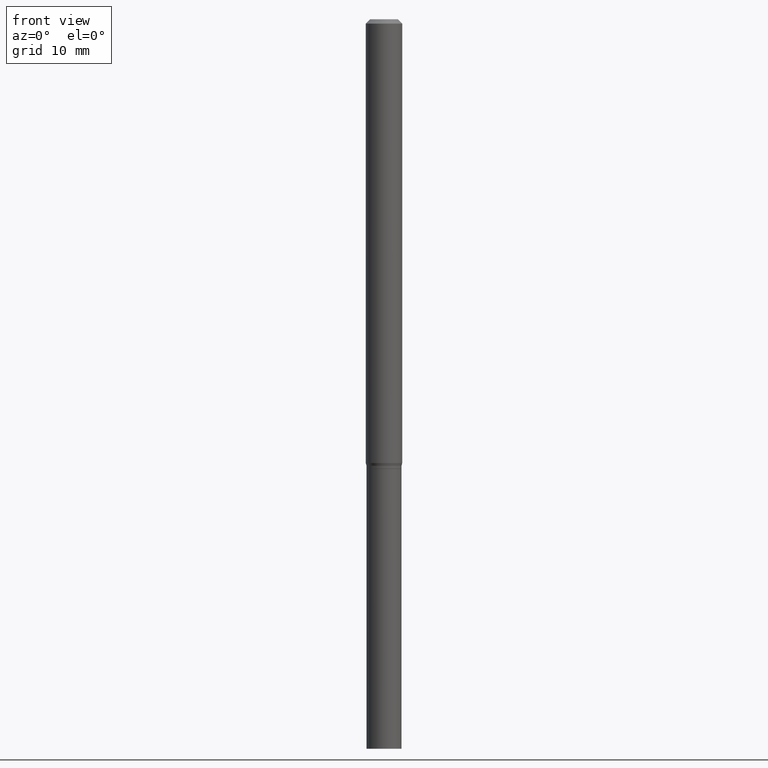
[diagram: clean part render]
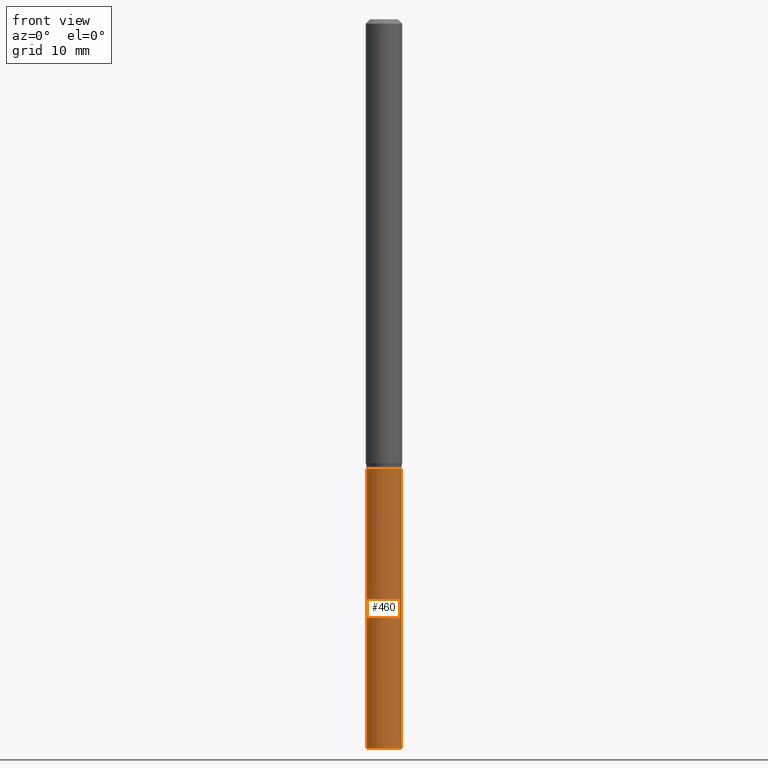
[diagram: same view with one face highlighted and labeled with its STEP entity id]
A machine part, front view. The second image highlights one B-rep face of the part: STEP entity #460.
In plain terms, the highlighted cylindrical surface (edge-blend (fillet) strip) has radius 1.524 mm, axis along (-0, 0, 1).
Its self-contained STEP definition (entity closure, byte-faithful):
#18 = DIRECTION ( 'NONE',  ( 1.000000000000000000, -6.982962677686251722E-15, 0.000000000000000000 ) ) ;
#25 = CARTESIAN_POINT ( 'NONE',  ( 0.05999999999999999778, -9.147681107769039999E-15, -2.500000000000000000 ) ) ;
#36 = ORIENTED_EDGE ( 'NONE', *, *, #312, .F. ) ;
#51 = EDGE_CURVE ( 'NONE', #458, #195, #373, .T. ) ;
#66 = DIRECTION ( 'NONE',  ( -2.445468806185136597E-29, 3.491481338843145583E-15, 1.000000000000000000 ) ) ;
#101 = CARTESIAN_POINT ( 'NONE',  ( -0.05999999999999999778, 4.263256414560600957E-16, -2.951361054152943413E-30 ) ) ;
#108 = DIRECTION ( 'NONE',  ( -2.445468806185136597E-29, 3.491481338843145583E-15, 1.000000000000000000 ) ) ;
#124 = CIRCLE ( 'NONE', #265, 0.05999999999999999778 ) ;
#129 = CYLINDRICAL_SURFACE ( 'NONE', #234, 0.05999999999999999778 ) ;
#136 = DIRECTION ( 'NONE',  ( 1.000000000000000000, -6.982962677686267499E-15, 4.876176775795936353E-29 ) ) ;
#165 = ORIENTED_EDGE ( 'NONE', *, *, #51, .T. ) ;
#195 = VERTEX_POINT ( 'NONE', #25 ) ;
#198 = CARTESIAN_POINT ( 'NONE',  ( 0.05999999999999999778, -4.189777606611760421E-16, 2.925706065477561756E-30 ) ) ;
#213 = DIRECTION ( 'NONE',  ( -2.445468806185136877E-29, 3.491481338843145188E-15, 1.000000000000000000 ) ) ;
#217 = VERTEX_POINT ( 'NONE', #336 ) ;
#222 = DIRECTION ( 'NONE',  ( -2.445468806185136877E-29, 3.491481338843145188E-15, 1.000000000000000000 ) ) ;
#234 = AXIS2_PLACEMENT_3D ( 'NONE', #356, #66, #136 ) ;
#239 = EDGE_LOOP ( 'NONE', ( #252, #165, #305, #36 ) ) ;
#252 = ORIENTED_EDGE ( 'NONE', *, *, #350, .F. ) ;
#253 = CARTESIAN_POINT ( 'NONE',  ( -0.05999999999999999778, -6.626466663007093973E-15, -2.500000000000000000 ) ) ;
#261 = CARTESIAN_POINT ( 'NONE',  ( 6.113672015462842613E-29, -8.728703347107864943E-15, -2.500000000000000000 ) ) ;
#265 = AXIS2_PLACEMENT_3D ( 'NONE', #276, #420, #403 ) ;
#276 = CARTESIAN_POINT ( 'NONE',  ( 3.766021961525111077E-29, -5.376881261818445562E-15, -1.540000000000000258 ) ) ;
#305 = ORIENTED_EDGE ( 'NONE', *, *, #364, .T. ) ;
#312 = EDGE_CURVE ( 'NONE', #393, #217, #124, .T. ) ;
#321 = LINE ( 'NONE', #101, #392 ) ;
#336 = CARTESIAN_POINT ( 'NONE',  ( 0.05999999999999999778, -5.795859022479621407E-15, -1.540000000000000258 ) ) ;
#350 = EDGE_CURVE ( 'NONE', #458, #393, #321, .T. ) ;
#352 = AXIS2_PLACEMENT_3D ( 'NONE', #261, #108, #18 ) ;
#356 = CARTESIAN_POINT ( 'NONE',  ( 0.000000000000000000, 0.000000000000000000, 0.000000000000000000 ) ) ;
#364 = EDGE_CURVE ( 'NONE', #195, #217, #390, .T. ) ;
#373 = CIRCLE ( 'NONE', #352, 0.05999999999999999778 ) ;
#390 = LINE ( 'NONE', #198, #424 ) ;
#392 = VECTOR ( 'NONE', #222, 39.37007874015748143 ) ;
#393 = VERTEX_POINT ( 'NONE', #433 ) ;
#403 = DIRECTION ( 'NONE',  ( 1.000000000000000000, -6.982962677686268288E-15, 0.000000000000000000 ) ) ;
#420 = DIRECTION ( 'NONE',  ( -2.445468806185136597E-29, 3.491481338843145583E-15, 1.000000000000000000 ) ) ;
#424 = VECTOR ( 'NONE', #213, 39.37007874015748143 ) ;
#433 = CARTESIAN_POINT ( 'NONE',  ( -0.05999999999999999778, -6.626466663007093973E-15, -1.540000000000000258 ) ) ;
#437 = FACE_OUTER_BOUND ( 'NONE', #239, .T. ) ;
#458 = VERTEX_POINT ( 'NONE', #253 ) ;
#460 = ADVANCED_FACE ( 'NONE', ( #437 ), #129, .T. ) ;